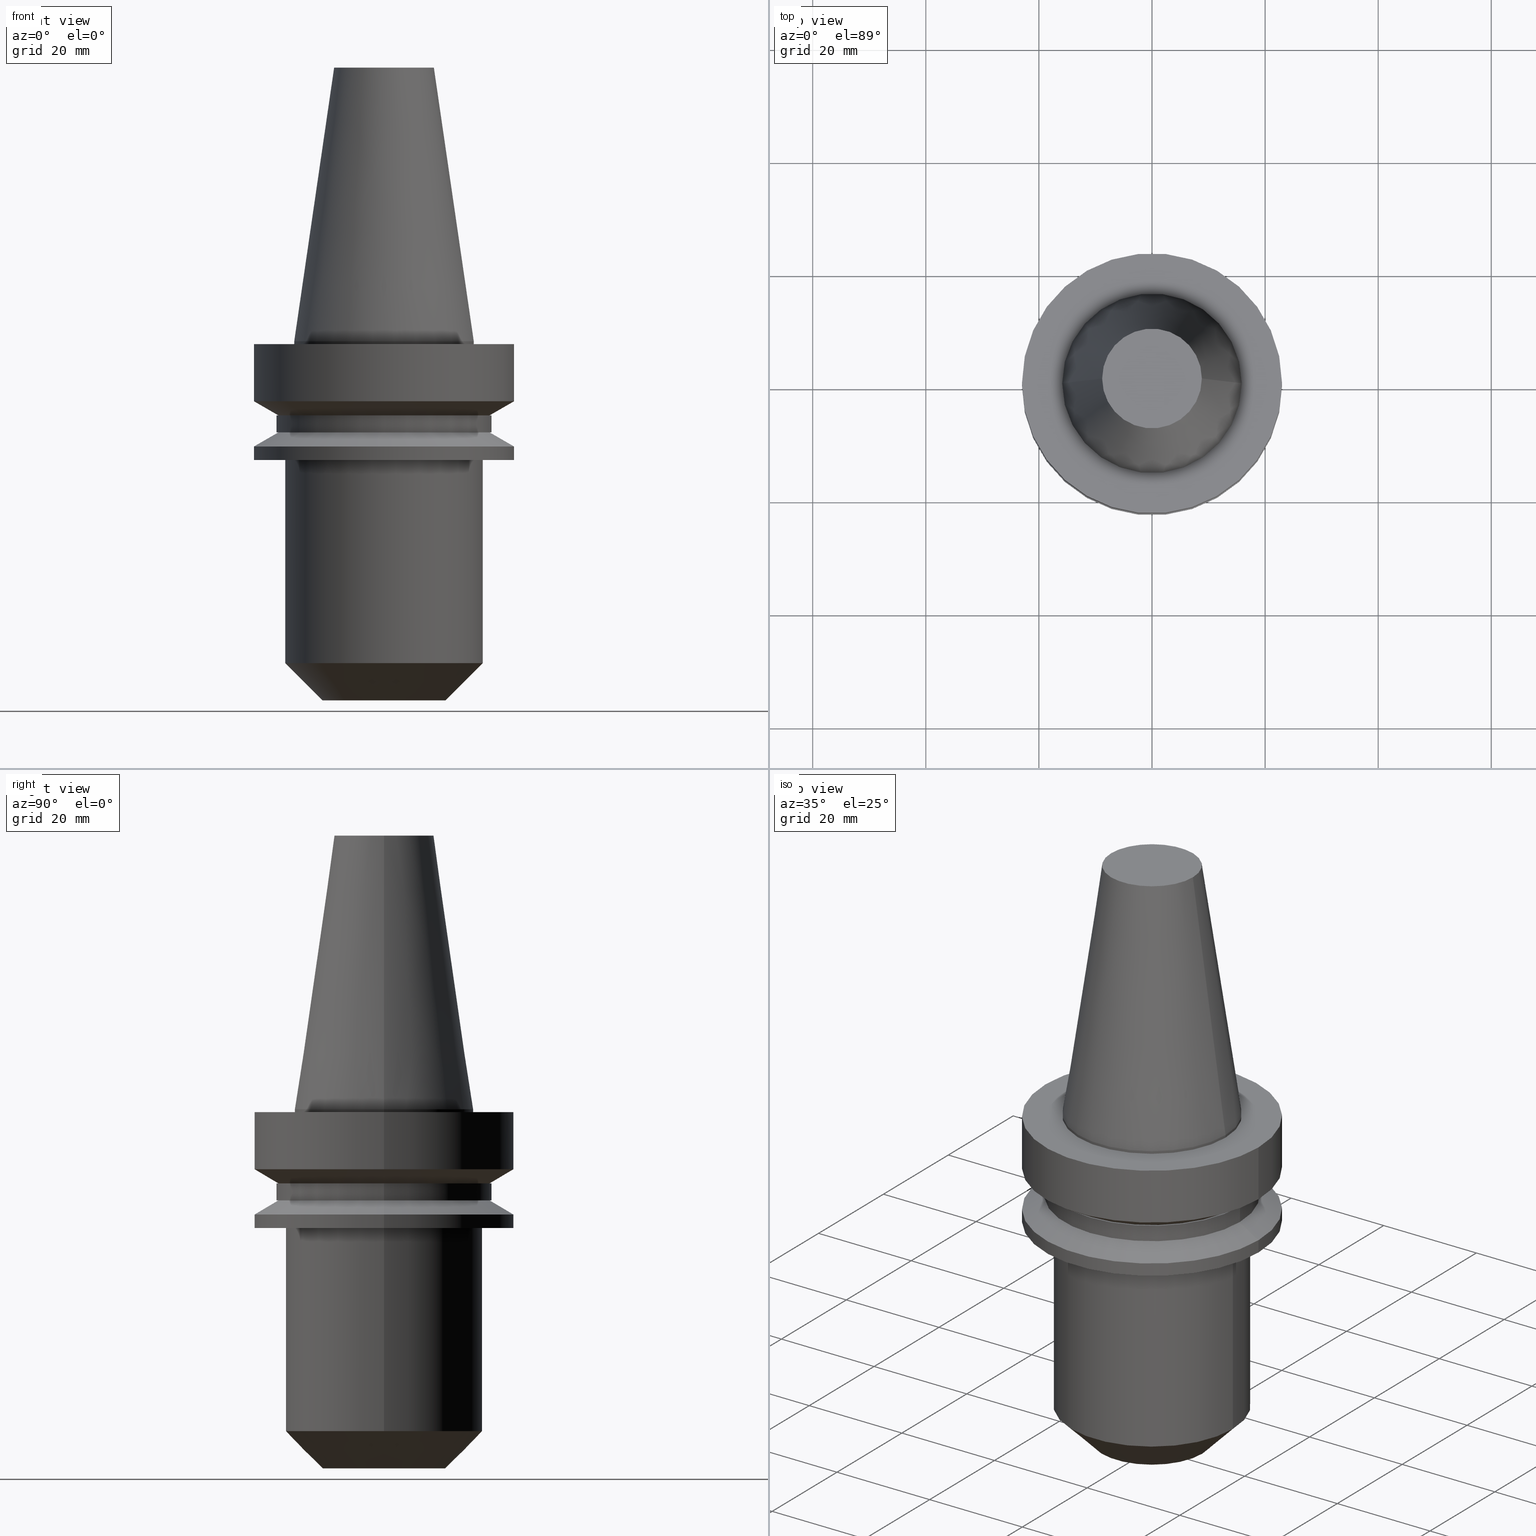
[diagram: canonical four-view strip — front | top / right | iso, engineering-drawing reading convention]
A machine part, canonical four-view strip (front | top / right | iso — engineering-drawing reading convention). The complete STEP part file that produces these views, byte-faithful:
ISO-10303-21;
HEADER;
FILE_DESCRIPTION (( 'STEP AP203' ),
    '1' );
FILE_NAME ('BBT30-EM_500-2_5.STEP',
    '2022-02-22T21:21:05',
    ( '' ),
    ( '' ),
    'SwSTEP 2.0',
    'SolidWorks 2021',
    '' );
FILE_SCHEMA (( 'CONFIG_CONTROL_DESIGN' ));
ENDSEC;

DATA;
#1 = ORIENTED_EDGE ( 'NONE', *, *, #200, .F. ) ;
#2 = EDGE_CURVE ( 'NONE', #712, #735, #480, .T. ) ;
#3 = EDGE_CURVE ( 'NONE', #318, #515, #60, .T. ) ;
#4 = CARTESIAN_POINT ( 'NONE',  ( 0.000000000000000000, 0.000000000000000000, 0.000000000000000000 ) ) ;
#5 = EDGE_LOOP ( 'NONE', ( #447, #497 ) ) ;
#6 = EDGE_CURVE ( 'NONE', #191, #664, #453, .T. ) ;
#7 = DIRECTION ( 'NONE',  ( -1.000000000000000000, 0.000000000000000000, -0.000000000000000000 ) ) ;
#8 = VECTOR ( 'NONE', #30, 1000.000000000000000 ) ;
#9 = ORIENTED_EDGE ( 'NONE', *, *, #2, .T. ) ;
#10 = AXIS2_PLACEMENT_3D ( 'NONE', #514, #753, #462 ) ;
#11 = AXIS2_PLACEMENT_3D ( 'NONE', #193, #259, #201 ) ;
#12 = EDGE_CURVE ( 'NONE', #664, #191, #653, .T. ) ;
#13 = SECURITY_CLASSIFICATION ( '', '', #350 ) ;
#14 = DIRECTION ( 'NONE',  ( -0.000000000000000000, -0.000000000000000000, 1.000000000000000000 ) ) ;
#15 = DIRECTION ( 'NONE',  ( 0.000000000000000000, 0.000000000000000000, -1.000000000000000000 ) ) ;
#16 = CARTESIAN_POINT ( 'NONE',  ( 22.99999999999999289, 0.000000000000000000, -21.00000000000000355 ) ) ;
#17 = DIRECTION ( 'NONE',  ( 1.000000000000000000, 0.000000000000000000, 0.000000000000000000 ) ) ;
#18 = ORIENTED_EDGE ( 'NONE', *, *, #435, .T. ) ;
#19 = DIRECTION ( 'NONE',  ( 1.000000000000000000, 0.000000000000000000, 0.000000000000000000 ) ) ;
#20 = CARTESIAN_POINT ( 'NONE',  ( -17.46499999999999986, 2.138845634710852534E-15, -20.99999999999999645 ) ) ;
#21 = EDGE_CURVE ( 'NONE', #545, #115, #565, .T. ) ;
#22 = ORIENTED_EDGE ( 'NONE', *, *, #63, .T. ) ;
#23 = AXIS2_PLACEMENT_3D ( 'NONE', #90, #210, #146 ) ;
#24 = VECTOR ( 'NONE', #745, 1000.000000000000114 ) ;
#25 = CIRCLE ( 'NONE', #127, 18.66962701892216359 ) ;
#26 = DIRECTION ( 'NONE',  ( -0.000000000000000000, -0.000000000000000000, 1.000000000000000000 ) ) ;
#27 = FACE_OUTER_BOUND ( 'NONE', #183, .T. ) ;
#28 = EDGE_LOOP ( 'NONE', ( #285, #512, #678, #140 ) ) ;
#29 = DIRECTION ( 'NONE',  ( 1.000000000000000000, 0.000000000000000000, 0.000000000000000000 ) ) ;
#30 = DIRECTION ( 'NONE',  ( 0.8660254037844348218, 0.000000000000000000, 0.5000000000000066613 ) ) ;
#31 = VERTEX_POINT ( 'NONE', #607 ) ;
#32 = EDGE_CURVE ( 'NONE', #463, #198, #692, .T. ) ;
#33 = DIRECTION ( 'NONE',  ( 1.000000000000000000, 0.000000000000000000, 0.000000000000000000 ) ) ;
#34 = DIRECTION ( 'NONE',  ( 1.000000000000000000, 0.000000000000000000, 0.000000000000000000 ) ) ;
#35 = ORIENTED_EDGE ( 'NONE', *, *, #422, .F. ) ;
#36 = FACE_OUTER_BOUND ( 'NONE', #623, .T. ) ;
#37 = ADVANCED_FACE ( 'NONE', ( #614 ), #258, .F. ) ;
#38 = CARTESIAN_POINT ( 'NONE',  ( -18.66962701892216359, 2.551528767519355189E-15, -13.10028401263362063 ) ) ;
#39 = CONICAL_SURFACE ( 'NONE', #88, 23.00000000000000000, 1.047197551196589416 ) ;
#40 = APPROVAL_PERSON_ORGANIZATION ( #124, #599, #184 ) ;
#41 = ORIENTED_EDGE ( 'NONE', *, *, #543, .F. ) ;
#42 = CARTESIAN_POINT ( 'NONE',  ( 19.00000000000000000, 0.000000000000000000, -13.10028401263362063 ) ) ;
#43 = LINE ( 'NONE', #577, #24 ) ;
#44 = ORIENTED_EDGE ( 'NONE', *, *, #435, .F. ) ;
#45 = DIRECTION ( 'NONE',  ( 1.000000000000000000, 0.000000000000000000, 0.000000000000000000 ) ) ;
#46 = CARTESIAN_POINT ( 'NONE',  ( 0.000000000000000000, 0.000000000000000000, 48.39999999999998437 ) ) ;
#47 = ORIENTED_EDGE ( 'NONE', *, *, #335, .F. ) ;
#48 = ADVANCED_FACE ( 'NONE', ( #27 ), #439, .T. ) ;
#49 = AXIS2_PLACEMENT_3D ( 'NONE', #465, #54, #362 ) ;
#50 = DIRECTION ( 'NONE',  ( -0.000000000000000000, -0.000000000000000000, 1.000000000000000000 ) ) ;
#51 = CONICAL_SURFACE ( 'NONE', #522, 23.00000000000000000, 1.047197551196589416 ) ;
#52 = ORIENTED_EDGE ( 'NONE', *, *, #120, .T. ) ;
#53 = PERSON_AND_ORGANIZATION ( #352, #291 ) ;
#54 = DIRECTION ( 'NONE',  ( 0.000000000000000000, -0.000000000000000000, 1.000000000000000000 ) ) ;
#55 = EDGE_LOOP ( 'NONE', ( #168, #144 ) ) ;
#56 = APPROVAL_DATE_TIME ( #644, #599 ) ;
#57 = CARTESIAN_POINT ( 'NONE',  ( 0.000000000000000000, 18.66962701892216359, -13.10028401263362063 ) ) ;
#58 = ORIENTED_EDGE ( 'NONE', *, *, #345, .F. ) ;
#59 = COORDINATED_UNIVERSAL_TIME_OFFSET ( 6, 0, .BEHIND. ) ;
#60 = CIRCLE ( 'NONE', #357, 8.816600212367498912 ) ;
#61 = AXIS2_PLACEMENT_3D ( 'NONE', #134, #202, #436 ) ;
#62 = CARTESIAN_POINT ( 'NONE',  ( 18.66962701892216359, 2.551528767519354794E-15, -16.09999999999999076 ) ) ;
#63 = EDGE_CURVE ( 'NONE', #31, #707, #507, .T. ) ;
#64 = AXIS2_PLACEMENT_3D ( 'NONE', #749, #757, #231 ) ;
#65 = ORIENTED_EDGE ( 'NONE', *, *, #483, .T. ) ;
#66 = CIRCLE ( 'NONE', #149, 23.00000000000000711 ) ;
#67 = DATE_TIME_ROLE ( 'classification_date' ) ;
#68 = DIRECTION ( 'NONE',  ( -0.000000000000000000, -0.000000000000000000, 1.000000000000000000 ) ) ;
#69 = ORIENTED_EDGE ( 'NONE', *, *, #21, .F. ) ;
#70 = ADVANCED_FACE ( 'NONE', ( #85 ), #728, .T. ) ;
#71 = CARTESIAN_POINT ( 'NONE',  ( 15.87500000000000000, 1.944126793646423238E-15, 0.000000000000000000 ) ) ;
#72 = CARTESIAN_POINT ( 'NONE',  ( 0.000000000000000000, 0.000000000000000000, -13.10028401263362063 ) ) ;
#73 = EDGE_CURVE ( 'NONE', #288, #108, #381, .T. ) ;
#74 = DIRECTION ( 'NONE',  ( 1.000000000000000000, 0.000000000000000000, 0.000000000000000000 ) ) ;
#75 = LINE ( 'NONE', #196, #312 ) ;
#76 = CIRCLE ( 'NONE', #213, 17.46499999999999986 ) ;
#77 = DIRECTION ( 'NONE',  ( -0.000000000000000000, -0.000000000000000000, 1.000000000000000000 ) ) ;
#78 = DIRECTION ( 'NONE',  ( -0.000000000000000000, -0.000000000000000000, 1.000000000000000000 ) ) ;
#79 = ORIENTED_EDGE ( 'NONE', *, *, #200, .T. ) ;
#80 = DIRECTION ( 'NONE',  ( -0.000000000000000000, -0.000000000000000000, 1.000000000000000000 ) ) ;
#81 = DIRECTION ( 'NONE',  ( 1.000000000000000000, 0.000000000000000000, 0.000000000000000000 ) ) ;
#82 = VERTEX_POINT ( 'NONE', #20 ) ;
#83 = LINE ( 'NONE', #558, #137 ) ;
#84 = ADVANCED_BREP_SHAPE_REPRESENTATION ( 'BBT30-EM_500-2_5', ( #217, #406 ), #189 ) ;
#85 = FACE_OUTER_BOUND ( 'NONE', #28, .T. ) ;
#86 = AXIS2_PLACEMENT_3D ( 'NONE', #580, #292, #342 ) ;
#87 = AXIS2_PLACEMENT_3D ( 'NONE', #308, #249, #717 ) ;
#88 = AXIS2_PLACEMENT_3D ( 'NONE', #727, #379, #603 ) ;
#89 = CARTESIAN_POINT ( 'NONE',  ( 19.00000000000000000, 0.000000000000000000, 48.39999999999998437 ) ) ;
#90 = CARTESIAN_POINT ( 'NONE',  ( 0.000000000000000000, 0.000000000000000000, 48.39999999999998437 ) ) ;
#91 = ORIENTED_EDGE ( 'NONE', *, *, #120, .F. ) ;
#92 = EDGE_CURVE ( 'NONE', #707, #31, #148, .T. ) ;
#93 = CARTESIAN_POINT ( 'NONE',  ( 0.000000000000000000, 10.86500000000008193, -63.50000000000000000 ) ) ;
#94 = DIRECTION ( 'NONE',  ( 0.1443082234293875943, 1.767266039134405996E-17, -0.9895327870518761948 ) ) ;
#95 = ADVANCED_FACE ( 'NONE', ( #323 ), #212, .T. ) ;
#96 =( LENGTH_UNIT ( ) NAMED_UNIT ( * ) SI_UNIT ( .MILLI., .METRE. ) );
#97 = DIRECTION ( 'NONE',  ( 1.000000000000000000, 0.000000000000000000, 0.000000000000000000 ) ) ;
#98 = ORIENTED_EDGE ( 'NONE', *, *, #12, .T. ) ;
#99 = CIRCLE ( 'NONE', #534, 23.00000000000000000 ) ;
#100 = AXIS2_PLACEMENT_3D ( 'NONE', #569, #339, #682 ) ;
#101 = CYLINDRICAL_SURFACE ( 'NONE', #458, 17.46499999999999986 ) ;
#102 = AXIS2_PLACEMENT_3D ( 'NONE', #517, #216, #748 ) ;
#103 = DIRECTION ( 'NONE',  ( -0.000000000000000000, -0.000000000000000000, 1.000000000000000000 ) ) ;
#104 = EDGE_LOOP ( 'NONE', ( #175, #594 ) ) ;
#105 = FACE_BOUND ( 'NONE', #585, .T. ) ;
#106 = DIRECTION ( 'NONE',  ( -0.000000000000000000, -0.000000000000000000, 1.000000000000000000 ) ) ;
#107 = CC_DESIGN_PERSON_AND_ORGANIZATION_ASSIGNMENT ( #592, #172, ( #13 ) ) ;
#108 = VERTEX_POINT ( 'NONE', #734 ) ;
#109 = DIRECTION ( 'NONE',  ( 0.000000000000000000, -0.000000000000000000, 1.000000000000000000 ) ) ;
#110 = LINE ( 'NONE', #336, #160 ) ;
#111 = EDGE_LOOP ( 'NONE', ( #58, #147 ) ) ;
#112 = PERSON_AND_ORGANIZATION ( #352, #291 ) ;
#113 = CARTESIAN_POINT ( 'NONE',  ( 0.000000000000000000, 0.000000000000000000, 48.39999999999998437 ) ) ;
#114 = LOCAL_TIME ( 15, 21, 5.000000000000000000, #762 ) ;
#115 = VERTEX_POINT ( 'NONE', #255 ) ;
#116 = EDGE_CURVE ( 'NONE', #280, #566, #770, .T. ) ;
#117 = PERSON_AND_ORGANIZATION_ROLE ( 'creator' ) ;
#118 = CARTESIAN_POINT ( 'NONE',  ( 6.349999999999996980, 0.000000000000000000, 0.000000000000000000 ) ) ;
#119 = ORIENTED_EDGE ( 'NONE', *, *, #161, .F. ) ;
#120 = EDGE_CURVE ( 'NONE', #539, #509, #99, .T. ) ;
#121 = ADVANCED_FACE ( 'NONE', ( #432 ), #500, .T. ) ;
#122 = FACE_OUTER_BOUND ( 'NONE', #337, .T. ) ;
#123 = ORIENTED_EDGE ( 'NONE', *, *, #73, .F. ) ;
#124 = PERSON_AND_ORGANIZATION ( #352, #291 ) ;
#125 = CARTESIAN_POINT ( 'NONE',  ( 17.46499999999999986, 0.000000000000000000, -20.99999999999999645 ) ) ;
#126 = ORIENTED_EDGE ( 'NONE', *, *, #209, .F. ) ;
#127 = AXIS2_PLACEMENT_3D ( 'NONE', #438, #338, #681 ) ;
#128 = PLANE ( 'NONE',  #187 ) ;
#129 = EDGE_CURVE ( 'NONE', #108, #165, #75, .T. ) ;
#130 = CARTESIAN_POINT ( 'NONE',  ( 0.000000000000000000, 0.000000000000000000, 48.39999999999999858 ) ) ;
#131 = DIRECTION ( 'NONE',  ( 1.000000000000000000, 0.000000000000000000, 0.000000000000000000 ) ) ;
#132 = DIRECTION ( 'NONE',  ( 1.000000000000000000, 0.000000000000000000, 0.000000000000000000 ) ) ;
#133 = CYLINDRICAL_SURFACE ( 'NONE', #163, 23.00000000000000355 ) ;
#134 = CARTESIAN_POINT ( 'NONE',  ( 0.000000000000000000, 0.000000000000000000, -63.50000000000000000 ) ) ;
#135 = ORIENTED_EDGE ( 'NONE', *, *, #698, .T. ) ;
#136 = AXIS2_PLACEMENT_3D ( 'NONE', #720, #195, #74 ) ;
#137 = VECTOR ( 'NONE', #26, 1000.000000000000000 ) ;
#138 = CARTESIAN_POINT ( 'NONE',  ( 18.66962701892216359, 0.000000000000000000, -13.10028401263362063 ) ) ;
#139 = DIRECTION ( 'NONE',  ( -0.000000000000000000, -0.000000000000000000, 1.000000000000000000 ) ) ;
#140 = ORIENTED_EDGE ( 'NONE', *, *, #412, .F. ) ;
#141 = CC_DESIGN_DATE_AND_TIME_ASSIGNMENT ( #295, #701, ( #446 ) ) ;
#142 = DIRECTION ( 'NONE',  ( 1.000000000000000000, 0.000000000000000000, 0.000000000000000000 ) ) ;
#143 = DIRECTION ( 'NONE',  ( -1.000000000000000000, 0.000000000000000000, -0.000000000000000000 ) ) ;
#144 = ORIENTED_EDGE ( 'NONE', *, *, #32, .T. ) ;
#145 = CARTESIAN_POINT ( 'NONE',  ( -23.00000000000000000, 2.816687638038912746E-15, -18.60014200631680836 ) ) ;
#146 = DIRECTION ( 'NONE',  ( 1.000000000000000000, 0.000000000000000000, 0.000000000000000000 ) ) ;
#147 = ORIENTED_EDGE ( 'NONE', *, *, #192, .F. ) ;
#148 = CIRCLE ( 'NONE', #331, 15.87500000000000000 ) ;
#149 = AXIS2_PLACEMENT_3D ( 'NONE', #150, #502, #45 ) ;
#150 = CARTESIAN_POINT ( 'NONE',  ( 0.000000000000000000, 0.000000000000000000, -10.60014200631680126 ) ) ;
#151 = FACE_OUTER_BOUND ( 'NONE', #270, .T. ) ;
#152 = EDGE_CURVE ( 'NONE', #729, #649, #756, .T. ) ;
#153 = EDGE_LOOP ( 'NONE', ( #9, #135, #238, #232 ) ) ;
#154 = CARTESIAN_POINT ( 'NONE',  ( -10.86500000000008193, 1.734712190992230765E-15, -63.50000000000000000 ) ) ;
#155 = CARTESIAN_POINT ( 'NONE',  ( -8.816600212367498912, 0.000000000000000000, 48.39999999999999858 ) ) ;
#156 = VERTEX_POINT ( 'NONE', #663 ) ;
#157 = LINE ( 'NONE', #444, #496 ) ;
#158 = CYLINDRICAL_SURFACE ( 'NONE', #173, 19.00000000000000000 ) ;
#159 = ORIENTED_EDGE ( 'NONE', *, *, #767, .F. ) ;
#160 = VECTOR ( 'NONE', #387, 1000.000000000000000 ) ;
#161 = EDGE_CURVE ( 'NONE', #171, #408, #392, .T. ) ;
#162 = CARTESIAN_POINT ( 'NONE',  ( 23.00000000000000000, 0.000000000000000000, -0.5000000000000004441 ) ) ;
#163 = AXIS2_PLACEMENT_3D ( 'NONE', #485, #368, #19 ) ;
#164 = LINE ( 'NONE', #391, #197 ) ;
#165 = VERTEX_POINT ( 'NONE', #373 ) ;
#166 = CARTESIAN_POINT ( 'NONE',  ( -6.349999999999996980, 7.776507174585690191E-16, 0.000000000000000000 ) ) ;
#167 = DIRECTION ( 'NONE',  ( -0.000000000000000000, -0.000000000000000000, 1.000000000000000000 ) ) ;
#168 = ORIENTED_EDGE ( 'NONE', *, *, #257, .T. ) ;
#169 = DIRECTION ( 'NONE',  ( 0.7071067811865435759, 0.000000000000000000, 0.7071067811865515695 ) ) ;
#170 = EDGE_CURVE ( 'NONE', #515, #493, #624, .T. ) ;
#171 = VERTEX_POINT ( 'NONE', #224 ) ;
#172 = PERSON_AND_ORGANIZATION_ROLE ( 'classification_officer' ) ;
#173 = AXIS2_PLACEMENT_3D ( 'NONE', #46, #763, #583 ) ;
#174 = CARTESIAN_POINT ( 'NONE',  ( 15.87500000000000000, 0.000000000000000000, 48.39999999999998437 ) ) ;
#175 = ORIENTED_EDGE ( 'NONE', *, *, #92, .F. ) ;
#176 = EDGE_CURVE ( 'NONE', #493, #321, #415, .T. ) ;
#177 = ADVANCED_FACE ( 'NONE', ( #628 ), #454, .T. ) ;
#178 = COORDINATED_UNIVERSAL_TIME_OFFSET ( 6, 0, .BEHIND. ) ;
#179 = DIRECTION ( 'NONE',  ( 0.000000000000000000, 0.000000000000000000, -1.000000000000000000 ) ) ;
#180 = ORIENTED_EDGE ( 'NONE', *, *, #284, .T. ) ;
#181 = DATE_AND_TIME ( #710, #669 ) ;
#182 = CYLINDRICAL_SURFACE ( 'NONE', #758, 6.349999999999996980 ) ;
#183 = EDGE_LOOP ( 'NONE', ( #574, #225, #519, #69 ) ) ;
#184 = APPROVAL_ROLE ( '' ) ;
#185 = CIRCLE ( 'NONE', #584, 6.349999999999996980 ) ;
#186 = DIRECTION ( 'NONE',  ( 0.000000000000000000, -0.000000000000000000, 1.000000000000000000 ) ) ;
#187 = AXIS2_PLACEMENT_3D ( 'NONE', #57, #179, #7 ) ;
#188 = DIRECTION ( 'NONE',  ( 1.000000000000000000, 0.000000000000000000, 0.000000000000000000 ) ) ;
#189 =( GEOMETRIC_REPRESENTATION_CONTEXT ( 3 ) GLOBAL_UNCERTAINTY_ASSIGNED_CONTEXT ( ( #590 ) ) GLOBAL_UNIT_ASSIGNED_CONTEXT ( ( #96, #278, #656 ) ) REPRESENTATION_CONTEXT ( 'NONE', 'WORKASPACE' ) );
#190 = CARTESIAN_POINT ( 'NONE',  ( 23.00000000000000000, 2.816687638038912352E-15, -18.60014200631680836 ) ) ;
#191 = VERTEX_POINT ( 'NONE', #279 ) ;
#192 = EDGE_CURVE ( 'NONE', #696, #437, #185, .T. ) ;
#193 = CARTESIAN_POINT ( 'NONE',  ( 0.000000000000000000, 0.000000000000000000, -16.10000000000000142 ) ) ;
#194 = DIRECTION ( 'NONE',  ( -0.000000000000000000, -0.000000000000000000, 1.000000000000000000 ) ) ;
#195 = DIRECTION ( 'NONE',  ( -0.000000000000000000, -0.000000000000000000, 1.000000000000000000 ) ) ;
#196 = CARTESIAN_POINT ( 'NONE',  ( -23.00000000000000355, 2.816687638038912746E-15, 48.39999999999998437 ) ) ;
#197 = VECTOR ( 'NONE', #103, 1000.000000000000000 ) ;
#198 = VERTEX_POINT ( 'NONE', #396 ) ;
#199 = CC_DESIGN_PERSON_AND_ORGANIZATION_ASSIGNMENT ( #112, #526, ( #547 ) ) ;
#200 = EDGE_CURVE ( 'NONE', #280, #539, #110, .T. ) ;
#201 = DIRECTION ( 'NONE',  ( 1.000000000000000000, 0.000000000000000000, 0.000000000000000000 ) ) ;
#202 = DIRECTION ( 'NONE',  ( -0.000000000000000000, -0.000000000000000000, 1.000000000000000000 ) ) ;
#203 = ORIENTED_EDGE ( 'NONE', *, *, #543, .T. ) ;
#204 = ADVANCED_FACE ( 'NONE', ( #272 ), #158, .T. ) ;
#205 = CARTESIAN_POINT ( 'NONE',  ( 0.000000000000000000, 0.000000000000000000, 0.000000000000000000 ) ) ;
#206 = CARTESIAN_POINT ( 'NONE',  ( -18.66962701892216359, 2.286369896999797237E-15, -13.10028401263362063 ) ) ;
#207 = ORIENTED_EDGE ( 'NONE', *, *, #563, .F. ) ;
#208 = DIRECTION ( 'NONE',  ( 0.000000000000000000, -0.000000000000000000, 1.000000000000000000 ) ) ;
#209 = EDGE_CURVE ( 'NONE', #318, #321, #43, .T. ) ;
#210 = DIRECTION ( 'NONE',  ( -0.000000000000000000, -0.000000000000000000, 1.000000000000000000 ) ) ;
#211 = EDGE_LOOP ( 'NONE', ( #307, #353 ) ) ;
#212 = CONICAL_SURFACE ( 'NONE', #730, 15.87500000000000000, 0.1448138426689024039 ) ;
#213 = AXIS2_PLACEMENT_3D ( 'NONE', #287, #445, #330 ) ;
#214 = CIRCLE ( 'NONE', #11, 19.00000000000000000 ) ;
#215 = CIRCLE ( 'NONE', #102, 18.66962701892216359 ) ;
#216 = DIRECTION ( 'NONE',  ( -0.000000000000000000, -0.000000000000000000, 1.000000000000000000 ) ) ;
#217 = MANIFOLD_SOLID_BREP ( 'EM', #301 ) ;
#218 = CARTESIAN_POINT ( 'NONE',  ( -22.99999999999999289, 2.816687638038911957E-15, -21.00000000000000355 ) ) ;
#219 = ORIENTED_EDGE ( 'NONE', *, *, #708, .F. ) ;
#220 = DIRECTION ( 'NONE',  ( 1.000000000000000000, 0.000000000000000000, 0.000000000000000000 ) ) ;
#221 = DIRECTION ( 'NONE',  ( -0.000000000000000000, -0.000000000000000000, 1.000000000000000000 ) ) ;
#222 = ORIENTED_EDGE ( 'NONE', *, *, #32, .F. ) ;
#223 = CARTESIAN_POINT ( 'NONE',  ( 19.00000000000000000, 0.000000000000000000, -16.10000000000000142 ) ) ;
#224 = CARTESIAN_POINT ( 'NONE',  ( -6.349999999999999645, 7.776507174585693149E-16, -63.50000000000000000 ) ) ;
#225 = ORIENTED_EDGE ( 'NONE', *, *, #73, .T. ) ;
#226 = AXIS2_PLACEMENT_3D ( 'NONE', #511, #106, #97 ) ;
#227 = EDGE_CURVE ( 'NONE', #566, #280, #289, .T. ) ;
#228 = VECTOR ( 'NONE', #552, 1000.000000000000000 ) ;
#229 = CARTESIAN_POINT ( 'NONE',  ( -6.349999999999996980, 7.776507174585690191E-16, -20.99999999999999645 ) ) ;
#230 = CIRCLE ( 'NONE', #471, 17.46499999999999986 ) ;
#231 = DIRECTION ( 'NONE',  ( 1.000000000000000000, 0.000000000000000000, 0.000000000000000000 ) ) ;
#232 = ORIENTED_EDGE ( 'NONE', *, *, #376, .F. ) ;
#233 = PERSON_AND_ORGANIZATION_ROLE ( 'design_owner' ) ;
#234 = DIRECTION ( 'NONE',  ( 1.000000000000000000, 0.000000000000000000, 0.000000000000000000 ) ) ;
#235 = ORIENTED_EDGE ( 'NONE', *, *, #345, .T. ) ;
#236 = PLANE ( 'NONE',  #49 ) ;
#237 = CC_DESIGN_PERSON_AND_ORGANIZATION_ASSIGNMENT ( #638, #117, ( #446 ) ) ;
#238 = ORIENTED_EDGE ( 'NONE', *, *, #527, .F. ) ;
#239 = AXIS2_PLACEMENT_3D ( 'NONE', #617, #317, #81 ) ;
#240 = DATE_AND_TIME ( #530, #114 ) ;
#241 = LINE ( 'NONE', #174, #520 ) ;
#242 = CIRCLE ( 'NONE', #709, 8.816600212367498912 ) ;
#243 = ORIENTED_EDGE ( 'NONE', *, *, #366, .F. ) ;
#244 = COORDINATED_UNIVERSAL_TIME_OFFSET ( 6, 0, .BEHIND. ) ;
#245 = CYLINDRICAL_SURFACE ( 'NONE', #521, 17.46499999999999986 ) ;
#246 = EDGE_LOOP ( 'NONE', ( #715, #700, #203, #397 ) ) ;
#247 = APPROVAL ( #302, 'UNSPECIFIED' ) ;
#248 = DIRECTION ( 'NONE',  ( 0.000000000000000000, 0.000000000000000000, 1.000000000000000000 ) ) ;
#249 = DIRECTION ( 'NONE',  ( -0.000000000000000000, -0.000000000000000000, 1.000000000000000000 ) ) ;
#250 = ORIENTED_EDGE ( 'NONE', *, *, #632, .T. ) ;
#251 = DIRECTION ( 'NONE',  ( -0.000000000000000000, -0.000000000000000000, 1.000000000000000000 ) ) ;
#252 = VECTOR ( 'NONE', #169, 999.9999999999998863 ) ;
#253 = ORIENTED_EDGE ( 'NONE', *, *, #176, .T. ) ;
#254 = FACE_OUTER_BOUND ( 'NONE', #263, .T. ) ;
#255 = CARTESIAN_POINT ( 'NONE',  ( 23.00000000000000711, 0.000000000000000000, -10.60014200631680126 ) ) ;
#256 = FACE_OUTER_BOUND ( 'NONE', #772, .T. ) ;
#257 = EDGE_CURVE ( 'NONE', #198, #463, #416, .T. ) ;
#258 = PLANE ( 'NONE',  #260 ) ;
#259 = DIRECTION ( 'NONE',  ( -0.000000000000000000, -0.000000000000000000, 1.000000000000000000 ) ) ;
#260 = AXIS2_PLACEMENT_3D ( 'NONE', #674, #492, #143 ) ;
#261 = CARTESIAN_POINT ( 'NONE',  ( 0.000000000000000000, 0.000000000000000000, 48.39999999999998437 ) ) ;
#262 = CIRCLE ( 'NONE', #10, 6.349999999999996980 ) ;
#263 = EDGE_LOOP ( 'NONE', ( #555, #250, #403, #751 ) ) ;
#264 = CIRCLE ( 'NONE', #136, 15.87500000000000000 ) ;
#265 = CARTESIAN_POINT ( 'NONE',  ( 8.816600212367498912, 1.511924458295098338E-15, 48.39999999999999858 ) ) ;
#266 = CARTESIAN_POINT ( 'NONE',  ( 0.000000000000000000, 0.000000000000000000, -18.60014200631680836 ) ) ;
#267 = EDGE_CURVE ( 'NONE', #509, #539, #333, .T. ) ;
#268 = FACE_OUTER_BOUND ( 'NONE', #625, .T. ) ;
#269 = CARTESIAN_POINT ( 'NONE',  ( 0.000000000000000000, 0.000000000000000000, -0.5000000000000004441 ) ) ;
#270 = EDGE_LOOP ( 'NONE', ( #300, #743, #726, #243 ) ) ;
#271 = DIRECTION ( 'NONE',  ( -0.000000000000000000, -0.000000000000000000, 1.000000000000000000 ) ) ;
#272 = FACE_OUTER_BOUND ( 'NONE', #246, .T. ) ;
#273 = PRODUCT ( 'BBT30-EM_500-2_5', 'BBT30-EM_500-2_5', '', ( #582 ) ) ;
#274 = ORIENTED_EDGE ( 'NONE', *, *, #3, .F. ) ;
#275 = AXIS2_PLACEMENT_3D ( 'NONE', #269, #554, #551 ) ;
#276 = VECTOR ( 'NONE', #50, 1000.000000000000000 ) ;
#277 = VECTOR ( 'NONE', #364, 1000.000000000000000 ) ;
#278 =( NAMED_UNIT ( * ) PLANE_ANGLE_UNIT ( ) SI_UNIT ( $, .RADIAN. ) );
#279 = CARTESIAN_POINT ( 'NONE',  ( -19.00000000000000000, 2.326828918379970970E-15, -13.10028401263362063 ) ) ;
#280 = VERTEX_POINT ( 'NONE', #218 ) ;
#281 = PRODUCT_DEFINITION_SHAPE ( 'NONE', 'NONE',  #446 ) ;
#282 = LINE ( 'NONE', #166, #655 ) ;
#283 = CARTESIAN_POINT ( 'NONE',  ( 0.000000000000000000, 0.000000000000000000, -21.00000000000000355 ) ) ;
#284 = EDGE_CURVE ( 'NONE', #660, #82, #164, .T. ) ;
#285 = ORIENTED_EDGE ( 'NONE', *, *, #129, .F. ) ;
#286 = FACE_OUTER_BOUND ( 'NONE', #759, .T. ) ;
#287 = CARTESIAN_POINT ( 'NONE',  ( 0.000000000000000000, 0.000000000000000000, -20.99999999999999645 ) ) ;
#288 = VERTEX_POINT ( 'NONE', #38 ) ;
#289 = CIRCLE ( 'NONE', #469, 22.99999999999999289 ) ;
#290 = PERSON_AND_ORGANIZATION ( #352, #291 ) ;
#291 = ORGANIZATION ( 'UNSPECIFIED', 'UNSPECIFIED', '' ) ;
#292 = DIRECTION ( 'NONE',  ( -0.000000000000000000, -0.000000000000000000, 1.000000000000000000 ) ) ;
#293 = ORIENTED_EDGE ( 'NONE', *, *, #129, .T. ) ;
#294 = ADVANCED_FACE ( 'NONE', ( #151 ), #633, .T. ) ;
#295 = DATE_AND_TIME ( #354, #382 ) ;
#296 = FACE_OUTER_BOUND ( 'NONE', #111, .T. ) ;
#297 = ORIENTED_EDGE ( 'NONE', *, *, #315, .F. ) ;
#298 = SHAPE_DEFINITION_REPRESENTATION ( #281, #84 ) ;
#299 = CARTESIAN_POINT ( 'NONE',  ( 0.000000000000000000, 0.000000000000000000, -20.99999999999999645 ) ) ;
#300 = ORIENTED_EDGE ( 'NONE', *, *, #92, .T. ) ;
#301 = CLOSED_SHELL ( 'NONE', ( #448, #430, #418, #294, #532, #48, #177, #567, #121, #95, #661, #591, #37, #389, #703, #360, #204, #400, #550, #70, #618, #386, #723, #609, #725, #672, #404 ) ) ;
#302 = APPROVAL_STATUS ( 'not_yet_approved' ) ;
#303 = CIRCLE ( 'NONE', #64, 23.00000000000000711 ) ;
#304 = FACE_OUTER_BOUND ( 'NONE', #642, .T. ) ;
#305 = AXIS2_PLACEMENT_3D ( 'NONE', #691, #576, #220 ) ;
#306 = EDGE_CURVE ( 'NONE', #82, #473, #76, .T. ) ;
#307 = ORIENTED_EDGE ( 'NONE', *, *, #152, .F. ) ;
#308 = CARTESIAN_POINT ( 'NONE',  ( 0.000000000000000000, 0.000000000000000000, -56.90000000000000568 ) ) ;
#309 = EDGE_LOOP ( 'NONE', ( #589, #581, #570, #52 ) ) ;
#310 = FACE_OUTER_BOUND ( 'NONE', #429, .T. ) ;
#311 = ORIENTED_EDGE ( 'NONE', *, *, #474, .T. ) ;
#312 = VECTOR ( 'NONE', #427, 1000.000000000000000 ) ;
#313 = FACE_OUTER_BOUND ( 'NONE', #393, .T. ) ;
#314 = DIRECTION ( 'NONE',  ( -0.000000000000000000, -0.000000000000000000, 1.000000000000000000 ) ) ;
#315 = EDGE_CURVE ( 'NONE', #156, #473, #518, .T. ) ;
#316 = CARTESIAN_POINT ( 'NONE',  ( 23.00000000000000000, 0.000000000000000000, -18.60014200631680836 ) ) ;
#317 = DIRECTION ( 'NONE',  ( -0.000000000000000000, -0.000000000000000000, 1.000000000000000000 ) ) ;
#318 = VERTEX_POINT ( 'NONE', #155 ) ;
#319 = CARTESIAN_POINT ( 'NONE',  ( 0.000000000000000000, 23.00000000000000000, -0.4999999999999995559 ) ) ;
#320 = CARTESIAN_POINT ( 'NONE',  ( 0.000000000000000000, 0.000000000000000000, -13.10028401263362063 ) ) ;
#321 = VERTEX_POINT ( 'NONE', #622 ) ;
#322 = FACE_OUTER_BOUND ( 'NONE', #388, .T. ) ;
#323 = FACE_OUTER_BOUND ( 'NONE', #658, .T. ) ;
#324 = AXIS2_PLACEMENT_3D ( 'NONE', #113, #775, #652 ) ;
#325 = CIRCLE ( 'NONE', #561, 23.00000000000000000 ) ;
#326 = CARTESIAN_POINT ( 'NONE',  ( 0.000000000000000000, 0.000000000000000000, -56.90000000000000568 ) ) ;
#327 = CARTESIAN_POINT ( 'NONE',  ( 0.000000000000000000, 0.000000000000000000, -21.00000000000000355 ) ) ;
#328 = DIRECTION ( 'NONE',  ( 1.000000000000000000, 0.000000000000000000, 0.000000000000000000 ) ) ;
#329 = DIRECTION ( 'NONE',  ( -0.000000000000000000, -0.000000000000000000, 1.000000000000000000 ) ) ;
#330 = DIRECTION ( 'NONE',  ( 1.000000000000000000, 0.000000000000000000, 0.000000000000000000 ) ) ;
#331 = AXIS2_PLACEMENT_3D ( 'NONE', #724, #742, #17 ) ;
#332 = ORIENTED_EDGE ( 'NONE', *, *, #3, .T. ) ;
#333 = CIRCLE ( 'NONE', #100, 23.00000000000000000 ) ;
#334 = PLANE ( 'NONE',  #486 ) ;
#335 = EDGE_CURVE ( 'NONE', #108, #115, #303, .T. ) ;
#336 = CARTESIAN_POINT ( 'NONE',  ( -22.99999999999999645, 2.816687638038911957E-15, 48.39999999999998437 ) ) ;
#337 = EDGE_LOOP ( 'NONE', ( #119, #451, #533, #44 ) ) ;
#338 = DIRECTION ( 'NONE',  ( -0.000000000000000000, -0.000000000000000000, 1.000000000000000000 ) ) ;
#339 = DIRECTION ( 'NONE',  ( -0.000000000000000000, -0.000000000000000000, 1.000000000000000000 ) ) ;
#340 = EDGE_LOOP ( 'NONE', ( #378, #579 ) ) ;
#341 = DIRECTION ( 'NONE',  ( 1.000000000000000000, 0.000000000000000000, 0.000000000000000000 ) ) ;
#342 = DIRECTION ( 'NONE',  ( 1.000000000000000000, 0.000000000000000000, 0.000000000000000000 ) ) ;
#343 = ORIENTED_EDGE ( 'NONE', *, *, #116, .F. ) ;
#344 = AXIS2_PLACEMENT_3D ( 'NONE', #320, #78, #670 ) ;
#345 = EDGE_CURVE ( 'NONE', #437, #696, #262, .T. ) ;
#346 = AXIS2_PLACEMENT_3D ( 'NONE', #687, #221, #234 ) ;
#347 = APPROVAL_ROLE ( '' ) ;
#348 = CARTESIAN_POINT ( 'NONE',  ( 0.000000000000000000, 19.00000000000000000, -16.09999999999999787 ) ) ;
#349 = ORIENTED_EDGE ( 'NONE', *, *, #422, .T. ) ;
#350 = SECURITY_CLASSIFICATION_LEVEL ( 'unclassified' ) ;
#351 = CARTESIAN_POINT ( 'NONE',  ( 6.349999999999996980, 0.000000000000000000, -20.99999999999999645 ) ) ;
#352 = PERSON ( 'UNSPECIFIED', 'UNSPECIFIED', 'UNSPECIFIED', ('UNSPECIFIED'), ('UNSPECIFIED'), ('UNSPECIFIED') ) ;
#353 = ORIENTED_EDGE ( 'NONE', *, *, #516, .F. ) ;
#354 = CALENDAR_DATE ( 2022, 22, 2 ) ;
#355 = CARTESIAN_POINT ( 'NONE',  ( 0.000000000000000000, 0.000000000000000000, 0.000000000000000000 ) ) ;
#356 = ORIENTED_EDGE ( 'NONE', *, *, #306, .F. ) ;
#357 = AXIS2_PLACEMENT_3D ( 'NONE', #130, #363, #602 ) ;
#358 = CALENDAR_DATE ( 2022, 22, 2 ) ;
#359 = LINE ( 'NONE', #598, #484 ) ;
#360 = ADVANCED_FACE ( 'NONE', ( #699, #399 ), #636, .F. ) ;
#361 = ORIENTED_EDGE ( 'NONE', *, *, #676, .T. ) ;
#362 = DIRECTION ( 'NONE',  ( 1.000000000000000000, 0.000000000000000000, 0.000000000000000000 ) ) ;
#363 = DIRECTION ( 'NONE',  ( -0.000000000000000000, -0.000000000000000000, 1.000000000000000000 ) ) ;
#364 = DIRECTION ( 'NONE',  ( -0.8660254037844344888, 0.000000000000000000, -0.5000000000000072164 ) ) ;
#365 = DIRECTION ( 'NONE',  ( 1.000000000000000000, 0.000000000000000000, 0.000000000000000000 ) ) ;
#366 = EDGE_CURVE ( 'NONE', #707, #493, #241, .T. ) ;
#367 = AXIS2_PLACEMENT_3D ( 'NONE', #604, #194, #377 ) ;
#368 = DIRECTION ( 'NONE',  ( -0.000000000000000000, -0.000000000000000000, 1.000000000000000000 ) ) ;
#369 = CARTESIAN_POINT ( 'NONE',  ( 18.66962701892216359, 0.000000000000000000, -13.10028401263362063 ) ) ;
#370 = AXIS2_PLACEMENT_3D ( 'NONE', #668, #372, #142 ) ;
#371 = EDGE_LOOP ( 'NONE', ( #562, #79, #501, #747 ) ) ;
#372 = DIRECTION ( 'NONE',  ( -0.000000000000000000, -0.000000000000000000, 1.000000000000000000 ) ) ;
#373 = CARTESIAN_POINT ( 'NONE',  ( -23.00000000000000000, 2.816687638038912746E-15, -0.5000000000000004441 ) ) ;
#374 = ORIENTED_EDGE ( 'NONE', *, *, #170, .T. ) ;
#375 = DIRECTION ( 'NONE',  ( 1.000000000000000000, 0.000000000000000000, 0.000000000000000000 ) ) ;
#376 = EDGE_CURVE ( 'NONE', #712, #156, #538, .T. ) ;
#377 = DIRECTION ( 'NONE',  ( 1.000000000000000000, 0.000000000000000000, 0.000000000000000000 ) ) ;
#378 = ORIENTED_EDGE ( 'NONE', *, *, #761, .F. ) ;
#379 = DIRECTION ( 'NONE',  ( 0.000000000000000000, 0.000000000000000000, -1.000000000000000000 ) ) ;
#380 = AXIS2_PLACEMENT_3D ( 'NONE', #524, #450, #384 ) ;
#381 = LINE ( 'NONE', #206, #665 ) ;
#382 = LOCAL_TIME ( 15, 21, 5.000000000000000000, #59 ) ;
#383 = DIRECTION ( 'NONE',  ( -0.000000000000000000, -0.000000000000000000, 1.000000000000000000 ) ) ;
#384 = DIRECTION ( 'NONE',  ( 1.000000000000000000, 0.000000000000000000, 0.000000000000000000 ) ) ;
#385 = ORIENTED_EDGE ( 'NONE', *, *, #527, .T. ) ;
#386 = ADVANCED_FACE ( 'NONE', ( #531 ), #593, .T. ) ;
#387 = DIRECTION ( 'NONE',  ( -0.000000000000000000, -0.000000000000000000, 1.000000000000000000 ) ) ;
#388 = EDGE_LOOP ( 'NONE', ( #608, #542 ) ) ;
#389 = ADVANCED_FACE ( 'NONE', ( #472 ), #639, .T. ) ;
#390 = CARTESIAN_POINT ( 'NONE',  ( 0.000000000000000000, 0.000000000000000000, -18.60014200631680836 ) ) ;
#391 = CARTESIAN_POINT ( 'NONE',  ( -17.46499999999999986, 2.138845634710852534E-15, 0.000000000000000000 ) ) ;
#392 = CIRCLE ( 'NONE', #61, 6.349999999999999645 ) ;
#393 = EDGE_LOOP ( 'NONE', ( #654, #274, #468, #477 ) ) ;
#394 = AXIS2_PLACEMENT_3D ( 'NONE', #461, #449, #328 ) ;
#395 = DIRECTION ( 'NONE',  ( -1.000000000000000000, 0.000000000000000000, 0.000000000000000000 ) ) ;
#396 = CARTESIAN_POINT ( 'NONE',  ( -18.66962701892216359, 0.000000000000000000, -16.09999999999999076 ) ) ;
#397 = ORIENTED_EDGE ( 'NONE', *, *, #6, .F. ) ;
#398 = FACE_OUTER_BOUND ( 'NONE', #309, .T. ) ;
#399 = FACE_BOUND ( 'NONE', #55, .T. ) ;
#400 = ADVANCED_FACE ( 'NONE', ( #588, #304 ), #128, .F. ) ;
#401 = EDGE_LOOP ( 'NONE', ( #219, #423, #18, #235 ) ) ;
#402 = DIRECTION ( 'NONE',  ( -0.000000000000000000, -0.000000000000000000, 1.000000000000000000 ) ) ;
#403 = ORIENTED_EDGE ( 'NONE', *, *, #376, .T. ) ;
#404 = ADVANCED_FACE ( 'NONE', ( #296 ), #236, .F. ) ;
#405 = CALENDAR_DATE ( 2022, 22, 2 ) ;
#406 = AXIS2_PLACEMENT_3D ( 'NONE', #475, #248, #470 ) ;
#407 = CARTESIAN_POINT ( 'NONE',  ( 10.86500000000008193, 0.000000000000000000, -63.50000000000000000 ) ) ;
#408 = VERTEX_POINT ( 'NONE', #702 ) ;
#409 = APPROVAL_DATE_TIME ( #240, #506 ) ;
#410 = DIRECTION ( 'NONE',  ( 1.000000000000000000, 0.000000000000000000, 0.000000000000000000 ) ) ;
#411 = ORIENTED_EDGE ( 'NONE', *, *, #284, .F. ) ;
#412 = EDGE_CURVE ( 'NONE', #165, #754, #482, .T. ) ;
#413 = DIRECTION ( 'NONE',  ( -0.000000000000000000, -0.000000000000000000, 1.000000000000000000 ) ) ;
#414 = ORIENTED_EDGE ( 'NONE', *, *, #632, .F. ) ;
#415 = CIRCLE ( 'NONE', #86, 15.87500000000000000 ) ;
#416 = CIRCLE ( 'NONE', #346, 18.66962701892216359 ) ;
#417 = CARTESIAN_POINT ( 'NONE',  ( 0.000000000000000000, 0.000000000000000000, 48.39999999999998437 ) ) ;
#418 = ADVANCED_FACE ( 'NONE', ( #310 ), #245, .T. ) ;
#419 = CONICAL_SURFACE ( 'NONE', #536, 18.66962701892216359, 1.047197551196590082 ) ;
#420 = EDGE_LOOP ( 'NONE', ( #740, #311, #764, #41 ) ) ;
#421 = DIRECTION ( 'NONE',  ( 1.000000000000000000, 0.000000000000000000, 0.000000000000000000 ) ) ;
#422 = EDGE_CURVE ( 'NONE', #473, #82, #680, .T. ) ;
#423 = ORIENTED_EDGE ( 'NONE', *, *, #689, .F. ) ;
#424 = CARTESIAN_POINT ( 'NONE',  ( 22.99999999999999645, 0.000000000000000000, 48.39999999999998437 ) ) ;
#425 = DIRECTION ( 'NONE',  ( 1.000000000000000000, 0.000000000000000000, 0.000000000000000000 ) ) ;
#426 = DIRECTION ( 'NONE',  ( -1.000000000000000000, 0.000000000000000000, 0.000000000000000000 ) ) ;
#427 = DIRECTION ( 'NONE',  ( -0.000000000000000000, -0.000000000000000000, 1.000000000000000000 ) ) ;
#428 = AXIS2_PLACEMENT_3D ( 'NONE', #319, #733, #431 ) ;
#429 = EDGE_LOOP ( 'NONE', ( #385, #180, #600, #297 ) ) ;
#430 = ADVANCED_FACE ( 'NONE', ( #476 ), #559, .T. ) ;
#431 = DIRECTION ( 'NONE',  ( -1.000000000000000000, 0.000000000000000000, -0.000000000000000000 ) ) ;
#432 = FACE_OUTER_BOUND ( 'NONE', #371, .T. ) ;
#433 = ORIENTED_EDGE ( 'NONE', *, *, #651, .F. ) ;
#434 = CARTESIAN_POINT ( 'NONE',  ( 0.000000000000000000, 0.000000000000000000, -63.50000000000000000 ) ) ;
#435 = EDGE_CURVE ( 'NONE', #408, #437, #601, .T. ) ;
#436 = DIRECTION ( 'NONE',  ( 1.000000000000000000, 0.000000000000000000, 0.000000000000000000 ) ) ;
#437 = VERTEX_POINT ( 'NONE', #351 ) ;
#438 = CARTESIAN_POINT ( 'NONE',  ( 0.000000000000000000, 0.000000000000000000, -13.10028401263362063 ) ) ;
#439 = CONICAL_SURFACE ( 'NONE', #239, 18.66962701892216359, 1.047197551196590082 ) ;
#440 = DIRECTION ( 'NONE',  ( 1.000000000000000000, 0.000000000000000000, 0.000000000000000000 ) ) ;
#441 = CIRCLE ( 'NONE', #87, 17.46499999999999986 ) ;
#442 = EDGE_LOOP ( 'NONE', ( #433, #22, #646, #634 ) ) ;
#443 = APPROVAL_PERSON_ORGANIZATION ( #290, #506, #523 ) ;
#444 = CARTESIAN_POINT ( 'NONE',  ( 23.00000000000000355, 0.000000000000000000, 48.39999999999998437 ) ) ;
#445 = DIRECTION ( 'NONE',  ( 0.000000000000000000, 0.000000000000000000, -1.000000000000000000 ) ) ;
#446 = PRODUCT_DEFINITION ( 'UNKNOWN', '', #547, #736 ) ;
#447 = ORIENTED_EDGE ( 'NONE', *, *, #689, .T. ) ;
#448 = ADVANCED_FACE ( 'NONE', ( #122 ), #182, .F. ) ;
#449 = DIRECTION ( 'NONE',  ( -0.000000000000000000, -0.000000000000000000, 1.000000000000000000 ) ) ;
#450 = DIRECTION ( 'NONE',  ( -0.000000000000000000, -0.000000000000000000, 1.000000000000000000 ) ) ;
#451 = ORIENTED_EDGE ( 'NONE', *, *, #708, .T. ) ;
#452 = FACE_OUTER_BOUND ( 'NONE', #401, .T. ) ;
#453 = CIRCLE ( 'NONE', #556, 19.00000000000000000 ) ;
#454 = CYLINDRICAL_SURFACE ( 'NONE', #380, 19.00000000000000000 ) ;
#455 = VECTOR ( 'NONE', #94, 1000.000000000000114 ) ;
#456 = ORIENTED_EDGE ( 'NONE', *, *, #563, .T. ) ;
#457 = AXIS2_PLACEMENT_3D ( 'NONE', #645, #528, #766 ) ;
#458 = AXIS2_PLACEMENT_3D ( 'NONE', #635, #752, #341 ) ;
#459 = PRODUCT_RELATED_PRODUCT_CATEGORY ( 'detail', '', ( #273 ) ) ;
#460 = CC_DESIGN_APPROVAL ( #247, ( #547 ) ) ;
#461 = CARTESIAN_POINT ( 'NONE',  ( 0.000000000000000000, 0.000000000000000000, -63.50000000000000000 ) ) ;
#462 = DIRECTION ( 'NONE',  ( 1.000000000000000000, 0.000000000000000000, 0.000000000000000000 ) ) ;
#463 = VERTEX_POINT ( 'NONE', #62 ) ;
#464 = APPLICATION_PROTOCOL_DEFINITION ( 'international standard', 'config_control_design', 1994, #487 ) ;
#465 = CARTESIAN_POINT ( 'NONE',  ( 0.000000000000000000, 22.99999999999999289, -20.99999999999999645 ) ) ;
#466 = ORIENTED_EDGE ( 'NONE', *, *, #227, .F. ) ;
#467 = DIRECTION ( 'NONE',  ( 1.000000000000000000, 0.000000000000000000, 0.000000000000000000 ) ) ;
#468 = ORIENTED_EDGE ( 'NONE', *, *, #209, .T. ) ;
#469 = AXIS2_PLACEMENT_3D ( 'NONE', #283, #167, #34 ) ;
#470 = DIRECTION ( 'NONE',  ( 1.000000000000000000, 0.000000000000000000, 0.000000000000000000 ) ) ;
#471 = AXIS2_PLACEMENT_3D ( 'NONE', #326, #251, #421 ) ;
#472 = FACE_OUTER_BOUND ( 'NONE', #721, .T. ) ;
#473 = VERTEX_POINT ( 'NONE', #125 ) ;
#474 = EDGE_CURVE ( 'NONE', #649, #191, #359, .T. ) ;
#475 = CARTESIAN_POINT ( 'NONE',  ( 0.000000000000000000, 0.000000000000000000, 0.000000000000000000 ) ) ;
#476 = FACE_OUTER_BOUND ( 'NONE', #153, .T. ) ;
#477 = ORIENTED_EDGE ( 'NONE', *, *, #578, .T. ) ;
#478 = DIRECTION ( 'NONE',  ( 1.000000000000000000, 0.000000000000000000, 0.000000000000000000 ) ) ;
#479 = CARTESIAN_POINT ( 'NONE',  ( 0.000000000000000000, 0.000000000000000000, -63.50000000000000000 ) ) ;
#480 = CIRCLE ( 'NONE', #679, 10.86500000000008193 ) ;
#481 = AXIS2_PLACEMENT_3D ( 'NONE', #548, #139, #425 ) ;
#482 = CIRCLE ( 'NONE', #457, 23.00000000000000000 ) ;
#483 = EDGE_CURVE ( 'NONE', #660, #156, #441, .T. ) ;
#484 = VECTOR ( 'NONE', #68, 1000.000000000000000 ) ;
#485 = CARTESIAN_POINT ( 'NONE',  ( 0.000000000000000000, 0.000000000000000000, 48.39999999999998437 ) ) ;
#486 = AXIS2_PLACEMENT_3D ( 'NONE', #571, #109, #29 ) ;
#487 = APPLICATION_CONTEXT ( 'configuration controlled 3d designs of mechanical parts and assemblies' ) ;
#488 = ORIENTED_EDGE ( 'NONE', *, *, #6, .T. ) ;
#489 = CARTESIAN_POINT ( 'NONE',  ( 0.000000000000000000, 0.000000000000000000, 48.39999999999999858 ) ) ;
#490 = DIRECTION ( 'NONE',  ( -0.000000000000000000, -0.000000000000000000, 1.000000000000000000 ) ) ;
#491 = CARTESIAN_POINT ( 'NONE',  ( 0.000000000000000000, 0.000000000000000000, -13.10028401263362063 ) ) ;
#492 = DIRECTION ( 'NONE',  ( 0.000000000000000000, 0.000000000000000000, -1.000000000000000000 ) ) ;
#493 = VERTEX_POINT ( 'NONE', #71 ) ;
#494 = PLANE ( 'NONE',  #428 ) ;
#495 = DIRECTION ( 'NONE',  ( -0.000000000000000000, -0.000000000000000000, 1.000000000000000000 ) ) ;
#496 = VECTOR ( 'NONE', #271, 1000.000000000000000 ) ;
#497 = ORIENTED_EDGE ( 'NONE', *, *, #161, .T. ) ;
#498 = EDGE_CURVE ( 'NONE', #463, #509, #722, .T. ) ;
#499 = CARTESIAN_POINT ( 'NONE',  ( -17.46499999999999986, 2.138845634710852534E-15, -56.90000000000000568 ) ) ;
#500 = CYLINDRICAL_SURFACE ( 'NONE', #641, 22.99999999999999645 ) ;
#501 = ORIENTED_EDGE ( 'NONE', *, *, #267, .F. ) ;
#502 = DIRECTION ( 'NONE',  ( -0.000000000000000000, -0.000000000000000000, 1.000000000000000000 ) ) ;
#503 = DIRECTION ( 'NONE',  ( -0.8660254037844348218, 1.060575238724902231E-16, 0.5000000000000066613 ) ) ;
#504 = ORIENTED_EDGE ( 'NONE', *, *, #498, .T. ) ;
#505 = CYLINDRICAL_SURFACE ( 'NONE', #305, 6.349999999999996980 ) ;
#506 = APPROVAL ( #647, 'UNSPECIFIED' ) ;
#507 = CIRCLE ( 'NONE', #275, 15.87500000000000000 ) ;
#508 = CARTESIAN_POINT ( 'NONE',  ( 0.000000000000000000, 0.000000000000000000, -20.99999999999999645 ) ) ;
#509 = VERTEX_POINT ( 'NONE', #316 ) ;
#510 = LOCAL_TIME ( 15, 21, 5.000000000000000000, #713 ) ;
#511 = CARTESIAN_POINT ( 'NONE',  ( 0.000000000000000000, 0.000000000000000000, 48.39999999999998437 ) ) ;
#512 = ORIENTED_EDGE ( 'NONE', *, *, #335, .T. ) ;
#513 = CARTESIAN_POINT ( 'NONE',  ( 10.86500000000008193, 0.000000000000000000, -63.50000000000000000 ) ) ;
#514 = CARTESIAN_POINT ( 'NONE',  ( 0.000000000000000000, 0.000000000000000000, -20.99999999999999645 ) ) ;
#515 = VERTEX_POINT ( 'NONE', #265 ) ;
#516 = EDGE_CURVE ( 'NONE', #649, #729, #214, .T. ) ;
#517 = CARTESIAN_POINT ( 'NONE',  ( 0.000000000000000000, 0.000000000000000000, -13.10028401263362063 ) ) ;
#518 = LINE ( 'NONE', #572, #276 ) ;
#519 = ORIENTED_EDGE ( 'NONE', *, *, #676, .F. ) ;
#520 = VECTOR ( 'NONE', #402, 1000.000000000000000 ) ;
#521 = AXIS2_PLACEMENT_3D ( 'NONE', #355, #711, #771 ) ;
#522 = AXIS2_PLACEMENT_3D ( 'NONE', #390, #626, #395 ) ;
#523 = APPROVAL_ROLE ( '' ) ;
#524 = CARTESIAN_POINT ( 'NONE',  ( 0.000000000000000000, 0.000000000000000000, 48.39999999999998437 ) ) ;
#525 = EDGE_LOOP ( 'NONE', ( #361, #293, #159, #596 ) ) ;
#526 = PERSON_AND_ORGANIZATION_ROLE ( 'creator' ) ;
#527 = EDGE_CURVE ( 'NONE', #156, #660, #230, .T. ) ;
#528 = DIRECTION ( 'NONE',  ( -0.000000000000000000, -0.000000000000000000, 1.000000000000000000 ) ) ;
#529 = ORIENTED_EDGE ( 'NONE', *, *, #666, .T. ) ;
#530 = CALENDAR_DATE ( 2022, 22, 2 ) ;
#531 = FACE_OUTER_BOUND ( 'NONE', #442, .T. ) ;
#532 = ADVANCED_FACE ( 'NONE', ( #675 ), #133, .T. ) ;
#533 = ORIENTED_EDGE ( 'NONE', *, *, #192, .T. ) ;
#534 = AXIS2_PLACEMENT_3D ( 'NONE', #266, #677, #440 ) ;
#535 = AXIS2_PLACEMENT_3D ( 'NONE', #299, #657, #467 ) ;
#536 = AXIS2_PLACEMENT_3D ( 'NONE', #491, #77, #131 ) ;
#537 = CC_DESIGN_APPROVAL ( #599, ( #13 ) ) ;
#538 = LINE ( 'NONE', #407, #252 ) ;
#539 = VERTEX_POINT ( 'NONE', #145 ) ;
#540 = EDGE_CURVE ( 'NONE', #566, #509, #659, .T. ) ;
#541 = DIRECTION ( 'NONE',  ( 1.000000000000000000, 0.000000000000000000, 0.000000000000000000 ) ) ;
#542 = ORIENTED_EDGE ( 'NONE', *, *, #412, .T. ) ;
#543 = EDGE_CURVE ( 'NONE', #729, #664, #662, .T. ) ;
#544 = DIRECTION ( 'NONE',  ( -0.000000000000000000, -0.000000000000000000, 1.000000000000000000 ) ) ;
#545 = VERTEX_POINT ( 'NONE', #138 ) ;
#546 = DIRECTION ( 'NONE',  ( 1.000000000000000000, 0.000000000000000000, 0.000000000000000000 ) ) ;
#547 = PRODUCT_DEFINITION_FORMATION_WITH_SPECIFIED_SOURCE ( 'ANY', '', #273, .NOT_KNOWN. ) ;
#548 = CARTESIAN_POINT ( 'NONE',  ( 0.000000000000000000, 0.000000000000000000, -16.10000000000000142 ) ) ;
#549 = LINE ( 'NONE', #615, #277 ) ;
#550 = ADVANCED_FACE ( 'NONE', ( #605 ), #419, .T. ) ;
#551 = DIRECTION ( 'NONE',  ( 1.000000000000000000, 0.000000000000000000, 0.000000000000000000 ) ) ;
#552 = DIRECTION ( 'NONE',  ( 0.8660254037844344888, 1.060575238724901861E-16, -0.5000000000000072164 ) ) ;
#553 = EDGE_CURVE ( 'NONE', #198, #539, #549, .T. ) ;
#554 = DIRECTION ( 'NONE',  ( -0.000000000000000000, -0.000000000000000000, 1.000000000000000000 ) ) ;
#555 = ORIENTED_EDGE ( 'NONE', *, *, #698, .F. ) ;
#556 = AXIS2_PLACEMENT_3D ( 'NONE', #72, #314, #739 ) ;
#557 = AXIS2_PLACEMENT_3D ( 'NONE', #417, #544, #478 ) ;
#558 = CARTESIAN_POINT ( 'NONE',  ( -15.87500000000000000, 1.944126793646423238E-15, 48.39999999999998437 ) ) ;
#559 = CONICAL_SURFACE ( 'NONE', #616, 10.86500000000008193, 0.7853981633974426169 ) ;
#560 = DIRECTION ( 'NONE',  ( -1.000000000000000000, 0.000000000000000000, 0.000000000000000000 ) ) ;
#561 = AXIS2_PLACEMENT_3D ( 'NONE', #631, #383, #568 ) ;
#562 = ORIENTED_EDGE ( 'NONE', *, *, #227, .T. ) ;
#563 = EDGE_CURVE ( 'NONE', #515, #318, #242, .T. ) ;
#564 = DIRECTION ( 'NONE',  ( 0.000000000000000000, 0.000000000000000000, -1.000000000000000000 ) ) ;
#565 = LINE ( 'NONE', #369, #8 ) ;
#566 = VERTEX_POINT ( 'NONE', #16 ) ;
#567 = ADVANCED_FACE ( 'NONE', ( #256 ), #39, .T. ) ;
#568 = DIRECTION ( 'NONE',  ( 1.000000000000000000, 0.000000000000000000, 0.000000000000000000 ) ) ;
#569 = CARTESIAN_POINT ( 'NONE',  ( 0.000000000000000000, 0.000000000000000000, -18.60014200631680836 ) ) ;
#570 = ORIENTED_EDGE ( 'NONE', *, *, #553, .T. ) ;
#571 = CARTESIAN_POINT ( 'NONE',  ( 0.000000000000000000, 22.99999999999999289, -20.99999999999999645 ) ) ;
#572 = CARTESIAN_POINT ( 'NONE',  ( 17.46499999999999986, 0.000000000000000000, 0.000000000000000000 ) ) ;
#573 = VECTOR ( 'NONE', #14, 1000.000000000000000 ) ;
#574 = ORIENTED_EDGE ( 'NONE', *, *, #761, .T. ) ;
#575 = AXIS2_PLACEMENT_3D ( 'NONE', #205, #564, #426 ) ;
#576 = DIRECTION ( 'NONE',  ( -0.000000000000000000, -0.000000000000000000, 1.000000000000000000 ) ) ;
#577 = CARTESIAN_POINT ( 'NONE',  ( -15.87500000000000000, 0.000000000000000000, 0.000000000000000000 ) ) ;
#578 = EDGE_CURVE ( 'NONE', #321, #493, #264, .T. ) ;
#579 = ORIENTED_EDGE ( 'NONE', *, *, #666, .F. ) ;
#580 = CARTESIAN_POINT ( 'NONE',  ( 0.000000000000000000, 0.000000000000000000, 0.000000000000000000 ) ) ;
#581 = ORIENTED_EDGE ( 'NONE', *, *, #257, .F. ) ;
#582 = MECHANICAL_CONTEXT ( 'NONE', #487, 'mechanical' ) ;
#583 = DIRECTION ( 'NONE',  ( 1.000000000000000000, 0.000000000000000000, 0.000000000000000000 ) ) ;
#584 = AXIS2_PLACEMENT_3D ( 'NONE', #508, #329, #684 ) ;
#585 = EDGE_LOOP ( 'NONE', ( #35, #356 ) ) ;
#586 = AXIS2_PLACEMENT_3D ( 'NONE', #93, #208, #33 ) ;
#587 = PERSON_AND_ORGANIZATION ( #352, #291 ) ;
#588 = FACE_BOUND ( 'NONE', #340, .T. ) ;
#589 = ORIENTED_EDGE ( 'NONE', *, *, #498, .F. ) ;
#590 = UNCERTAINTY_MEASURE_WITH_UNIT (LENGTH_MEASURE( 1.000000000000000082E-05 ), #96, 'distance_accuracy_value', 'NONE');
#591 = ADVANCED_FACE ( 'NONE', ( #313 ), #732, .T. ) ;
#592 = PERSON_AND_ORGANIZATION ( #352, #291 ) ;
#593 = CYLINDRICAL_SURFACE ( 'NONE', #557, 15.87500000000000000 ) ;
#594 = ORIENTED_EDGE ( 'NONE', *, *, #63, .F. ) ;
#595 = DIRECTION ( 'NONE',  ( 1.000000000000000000, 0.000000000000000000, 0.000000000000000000 ) ) ;
#596 = ORIENTED_EDGE ( 'NONE', *, *, #690, .F. ) ;
#597 = AXIS2_PLACEMENT_3D ( 'NONE', #434, #673, #375 ) ;
#598 = CARTESIAN_POINT ( 'NONE',  ( -19.00000000000000000, 2.326828918379970970E-15, 48.39999999999998437 ) ) ;
#599 = APPROVAL ( #650, 'UNSPECIFIED' ) ;
#600 = ORIENTED_EDGE ( 'NONE', *, *, #306, .T. ) ;
#601 = LINE ( 'NONE', #118, #731 ) ;
#602 = DIRECTION ( 'NONE',  ( 1.000000000000000000, 0.000000000000000000, 0.000000000000000000 ) ) ;
#603 = DIRECTION ( 'NONE',  ( -1.000000000000000000, 0.000000000000000000, 0.000000000000000000 ) ) ;
#604 = CARTESIAN_POINT ( 'NONE',  ( 0.000000000000000000, 0.000000000000000000, -16.09999999999999076 ) ) ;
#605 = FACE_OUTER_BOUND ( 'NONE', #630, .T. ) ;
#606 = APPROVAL_PERSON_ORGANIZATION ( #53, #247, #347 ) ;
#607 = CARTESIAN_POINT ( 'NONE',  ( -15.87500000000000000, 1.944126793646423238E-15, -0.5000000000000004441 ) ) ;
#608 = ORIENTED_EDGE ( 'NONE', *, *, #767, .T. ) ;
#609 = ADVANCED_FACE ( 'NONE', ( #254 ), #629, .T. ) ;
#610 = FACE_BOUND ( 'NONE', #104, .T. ) ;
#611 = CARTESIAN_POINT ( 'NONE',  ( 0.000000000000000000, 0.000000000000000000, 0.000000000000000000 ) ) ;
#612 = ORIENTED_EDGE ( 'NONE', *, *, #267, .T. ) ;
#613 = CARTESIAN_POINT ( 'NONE',  ( -19.00000000000000000, 2.326828918379970970E-15, -16.10000000000000142 ) ) ;
#614 = FACE_OUTER_BOUND ( 'NONE', #685, .T. ) ;
#615 = CARTESIAN_POINT ( 'NONE',  ( -23.00000000000000000, 0.000000000000000000, -18.60014200631680836 ) ) ;
#616 = AXIS2_PLACEMENT_3D ( 'NONE', #706, #714, #410 ) ;
#617 = CARTESIAN_POINT ( 'NONE',  ( 0.000000000000000000, 0.000000000000000000, -13.10028401263362063 ) ) ;
#618 = ADVANCED_FACE ( 'NONE', ( #610, #322 ), #494, .F. ) ;
#619 = CC_DESIGN_SECURITY_CLASSIFICATION ( #13, ( #547 ) ) ;
#620 = ORIENTED_EDGE ( 'NONE', *, *, #21, .T. ) ;
#621 = PLANE ( 'NONE',  #586 ) ;
#622 = CARTESIAN_POINT ( 'NONE',  ( -15.87500000000000000, 0.000000000000000000, 0.000000000000000000 ) ) ;
#623 = EDGE_LOOP ( 'NONE', ( #688, #414 ) ) ;
#624 = LINE ( 'NONE', #694, #455 ) ;
#625 = EDGE_LOOP ( 'NONE', ( #466, #343 ) ) ;
#626 = DIRECTION ( 'NONE',  ( 0.000000000000000000, 0.000000000000000000, -1.000000000000000000 ) ) ;
#627 = AXIS2_PLACEMENT_3D ( 'NONE', #327, #490, #365 ) ;
#628 = FACE_OUTER_BOUND ( 'NONE', #420, .T. ) ;
#629 = CONICAL_SURFACE ( 'NONE', #370, 10.86500000000008193, 0.7853981633974426169 ) ;
#630 = EDGE_LOOP ( 'NONE', ( #123, #529, #620, #47 ) ) ;
#631 = CARTESIAN_POINT ( 'NONE',  ( 0.000000000000000000, 0.000000000000000000, -0.5000000000000004441 ) ) ;
#632 = EDGE_CURVE ( 'NONE', #735, #712, #773, .T. ) ;
#633 = CYLINDRICAL_SURFACE ( 'NONE', #226, 15.87500000000000000 ) ;
#634 = ORIENTED_EDGE ( 'NONE', *, *, #578, .F. ) ;
#635 = CARTESIAN_POINT ( 'NONE',  ( 0.000000000000000000, 0.000000000000000000, 0.000000000000000000 ) ) ;
#636 = PLANE ( 'NONE',  #693 ) ;
#637 = ORIENTED_EDGE ( 'NONE', *, *, #116, .T. ) ;
#638 = PERSON_AND_ORGANIZATION ( #352, #291 ) ;
#639 = CYLINDRICAL_SURFACE ( 'NONE', #324, 22.99999999999999645 ) ;
#640 = APPLICATION_CONTEXT ( 'configuration controlled 3d designs of mechanical parts and assemblies' ) ;
#641 = AXIS2_PLACEMENT_3D ( 'NONE', #261, #495, #132 ) ;
#642 = EDGE_LOOP ( 'NONE', ( #98, #488 ) ) ;
#643 = CC_DESIGN_PERSON_AND_ORGANIZATION_ASSIGNMENT ( #769, #233, ( #273 ) ) ;
#644 = DATE_AND_TIME ( #405, #760 ) ;
#645 = CARTESIAN_POINT ( 'NONE',  ( 0.000000000000000000, 0.000000000000000000, -0.5000000000000004441 ) ) ;
#646 = ORIENTED_EDGE ( 'NONE', *, *, #366, .T. ) ;
#647 = APPROVAL_STATUS ( 'not_yet_approved' ) ;
#648 = DIRECTION ( 'NONE',  ( -0.000000000000000000, -0.000000000000000000, 1.000000000000000000 ) ) ;
#649 = VERTEX_POINT ( 'NONE', #613 ) ;
#650 = APPROVAL_STATUS ( 'not_yet_approved' ) ;
#651 = EDGE_CURVE ( 'NONE', #31, #321, #83, .T. ) ;
#652 = DIRECTION ( 'NONE',  ( 1.000000000000000000, 0.000000000000000000, 0.000000000000000000 ) ) ;
#653 = CIRCLE ( 'NONE', #344, 19.00000000000000000 ) ;
#654 = ORIENTED_EDGE ( 'NONE', *, *, #170, .F. ) ;
#655 = VECTOR ( 'NONE', #755, 1000.000000000000000 ) ;
#656 =( NAMED_UNIT ( * ) SI_UNIT ( $, .STERADIAN. ) SOLID_ANGLE_UNIT ( ) );
#657 = DIRECTION ( 'NONE',  ( 0.000000000000000000, 0.000000000000000000, -1.000000000000000000 ) ) ;
#658 = EDGE_LOOP ( 'NONE', ( #207, #374, #253, #126 ) ) ;
#659 = LINE ( 'NONE', #424, #573 ) ;
#660 = VERTEX_POINT ( 'NONE', #499 ) ;
#661 = ADVANCED_FACE ( 'NONE', ( #268, #105 ), #334, .F. ) ;
#662 = LINE ( 'NONE', #89, #667 ) ;
#663 = CARTESIAN_POINT ( 'NONE',  ( 17.46499999999999986, 0.000000000000000000, -56.90000000000000568 ) ) ;
#664 = VERTEX_POINT ( 'NONE', #42 ) ;
#665 = VECTOR ( 'NONE', #503, 1000.000000000000000 ) ;
#666 = EDGE_CURVE ( 'NONE', #288, #545, #215, .T. ) ;
#667 = VECTOR ( 'NONE', #80, 1000.000000000000000 ) ;
#668 = CARTESIAN_POINT ( 'NONE',  ( 0.000000000000000000, 0.000000000000000000, -63.50000000000000000 ) ) ;
#669 = LOCAL_TIME ( 15, 21, 5.000000000000000000, #244 ) ;
#670 = DIRECTION ( 'NONE',  ( 1.000000000000000000, 0.000000000000000000, 0.000000000000000000 ) ) ;
#671 = ORIENTED_EDGE ( 'NONE', *, *, #315, .T. ) ;
#672 = ADVANCED_FACE ( 'NONE', ( #452 ), #505, .F. ) ;
#673 = DIRECTION ( 'NONE',  ( -0.000000000000000000, -0.000000000000000000, 1.000000000000000000 ) ) ;
#674 = CARTESIAN_POINT ( 'NONE',  ( 0.000000000000000000, 8.816600212367498912, 48.39999999999999147 ) ) ;
#675 = FACE_OUTER_BOUND ( 'NONE', #525, .T. ) ;
#676 = EDGE_CURVE ( 'NONE', #115, #108, #66, .T. ) ;
#677 = DIRECTION ( 'NONE',  ( -0.000000000000000000, -0.000000000000000000, 1.000000000000000000 ) ) ;
#678 = ORIENTED_EDGE ( 'NONE', *, *, #690, .T. ) ;
#679 = AXIS2_PLACEMENT_3D ( 'NONE', #479, #718, #188 ) ;
#680 = CIRCLE ( 'NONE', #535, 17.46499999999999986 ) ;
#681 = DIRECTION ( 'NONE',  ( 1.000000000000000000, 0.000000000000000000, 0.000000000000000000 ) ) ;
#682 = DIRECTION ( 'NONE',  ( 1.000000000000000000, 0.000000000000000000, 0.000000000000000000 ) ) ;
#683 = CARTESIAN_POINT ( 'NONE',  ( -10.86500000000008193, 1.330578747273609194E-15, -63.50000000000000000 ) ) ;
#684 = DIRECTION ( 'NONE',  ( 1.000000000000000000, 0.000000000000000000, 0.000000000000000000 ) ) ;
#685 = EDGE_LOOP ( 'NONE', ( #332, #456 ) ) ;
#686 = DIRECTION ( 'NONE',  ( -0.7071067811865435759, 8.659560562354884787E-17, 0.7071067811865515695 ) ) ;
#687 = CARTESIAN_POINT ( 'NONE',  ( 0.000000000000000000, 0.000000000000000000, -16.09999999999999076 ) ) ;
#688 = ORIENTED_EDGE ( 'NONE', *, *, #2, .F. ) ;
#689 = EDGE_CURVE ( 'NONE', #408, #171, #746, .T. ) ;
#690 = EDGE_CURVE ( 'NONE', #115, #754, #157, .T. ) ;
#691 = CARTESIAN_POINT ( 'NONE',  ( 0.000000000000000000, 0.000000000000000000, 0.000000000000000000 ) ) ;
#692 = CIRCLE ( 'NONE', #367, 18.66962701892216359 ) ;
#693 = AXIS2_PLACEMENT_3D ( 'NONE', #348, #186, #541 ) ;
#694 = CARTESIAN_POINT ( 'NONE',  ( 15.87500000000000000, 1.944126793646423238E-15, 0.000000000000000000 ) ) ;
#695 = VECTOR ( 'NONE', #686, 999.9999999999998863 ) ;
#696 = VERTEX_POINT ( 'NONE', #229 ) ;
#697 = CARTESIAN_POINT ( 'NONE',  ( 15.87500000000000000, 0.000000000000000000, -0.5000000000000004441 ) ) ;
#698 = EDGE_CURVE ( 'NONE', #735, #660, #744, .T. ) ;
#699 = FACE_OUTER_BOUND ( 'NONE', #211, .T. ) ;
#700 = ORIENTED_EDGE ( 'NONE', *, *, #516, .T. ) ;
#701 = DATE_TIME_ROLE ( 'creation_date' ) ;
#702 = CARTESIAN_POINT ( 'NONE',  ( 6.349999999999999645, 0.000000000000000000, -63.50000000000000000 ) ) ;
#703 = ADVANCED_FACE ( 'NONE', ( #398 ), #51, .T. ) ;
#704 = ORIENTED_EDGE ( 'NONE', *, *, #553, .F. ) ;
#705 = PERSON_AND_ORGANIZATION_ROLE ( 'design_supplier' ) ;
#706 = CARTESIAN_POINT ( 'NONE',  ( 0.000000000000000000, 0.000000000000000000, -63.50000000000000000 ) ) ;
#707 = VERTEX_POINT ( 'NONE', #697 ) ;
#708 = EDGE_CURVE ( 'NONE', #171, #696, #282, .T. ) ;
#709 = AXIS2_PLACEMENT_3D ( 'NONE', #489, #738, #546 ) ;
#710 = CALENDAR_DATE ( 2022, 22, 2 ) ;
#711 = DIRECTION ( 'NONE',  ( -0.000000000000000000, -0.000000000000000000, 1.000000000000000000 ) ) ;
#712 = VERTEX_POINT ( 'NONE', #513 ) ;
#713 = COORDINATED_UNIVERSAL_TIME_OFFSET ( 6, 0, .BEHIND. ) ;
#714 = DIRECTION ( 'NONE',  ( -0.000000000000000000, -0.000000000000000000, 1.000000000000000000 ) ) ;
#715 = ORIENTED_EDGE ( 'NONE', *, *, #474, .F. ) ;
#716 = APPROVAL_DATE_TIME ( #774, #247 ) ;
#717 = DIRECTION ( 'NONE',  ( 1.000000000000000000, 0.000000000000000000, 0.000000000000000000 ) ) ;
#718 = DIRECTION ( 'NONE',  ( -0.000000000000000000, -0.000000000000000000, 1.000000000000000000 ) ) ;
#719 = CC_DESIGN_APPROVAL ( #506, ( #446 ) ) ;
#720 = CARTESIAN_POINT ( 'NONE',  ( 0.000000000000000000, 0.000000000000000000, 0.000000000000000000 ) ) ;
#721 = EDGE_LOOP ( 'NONE', ( #1, #637, #768, #91 ) ) ;
#722 = LINE ( 'NONE', #190, #228 ) ;
#723 = ADVANCED_FACE ( 'NONE', ( #286 ), #101, .T. ) ;
#724 = CARTESIAN_POINT ( 'NONE',  ( 0.000000000000000000, 0.000000000000000000, -0.5000000000000004441 ) ) ;
#725 = ADVANCED_FACE ( 'NONE', ( #36, #741 ), #621, .F. ) ;
#726 = ORIENTED_EDGE ( 'NONE', *, *, #176, .F. ) ;
#727 = CARTESIAN_POINT ( 'NONE',  ( 0.000000000000000000, 0.000000000000000000, -18.60014200631680836 ) ) ;
#728 = CYLINDRICAL_SURFACE ( 'NONE', #23, 23.00000000000000355 ) ;
#729 = VERTEX_POINT ( 'NONE', #223 ) ;
#730 = AXIS2_PLACEMENT_3D ( 'NONE', #611, #15, #560 ) ;
#731 = VECTOR ( 'NONE', #648, 1000.000000000000000 ) ;
#732 = CONICAL_SURFACE ( 'NONE', #575, 15.87500000000000000, 0.1448138426689024039 ) ;
#733 = DIRECTION ( 'NONE',  ( 0.000000000000000000, 0.000000000000000000, -1.000000000000000000 ) ) ;
#734 = CARTESIAN_POINT ( 'NONE',  ( -23.00000000000000711, 2.816687638038913141E-15, -10.60014200631680126 ) ) ;
#735 = VERTEX_POINT ( 'NONE', #154 ) ;
#736 = DESIGN_CONTEXT ( 'detailed design', #640, 'design' ) ;
#737 = CC_DESIGN_DATE_AND_TIME_ASSIGNMENT ( #181, #67, ( #13 ) ) ;
#738 = DIRECTION ( 'NONE',  ( -0.000000000000000000, -0.000000000000000000, 1.000000000000000000 ) ) ;
#739 = DIRECTION ( 'NONE',  ( 1.000000000000000000, 0.000000000000000000, 0.000000000000000000 ) ) ;
#740 = ORIENTED_EDGE ( 'NONE', *, *, #152, .T. ) ;
#741 = FACE_BOUND ( 'NONE', #5, .T. ) ;
#742 = DIRECTION ( 'NONE',  ( -0.000000000000000000, -0.000000000000000000, 1.000000000000000000 ) ) ;
#743 = ORIENTED_EDGE ( 'NONE', *, *, #651, .T. ) ;
#744 = LINE ( 'NONE', #683, #695 ) ;
#745 = DIRECTION ( 'NONE',  ( -0.1443082234293875943, 0.000000000000000000, -0.9895327870518761948 ) ) ;
#746 = CIRCLE ( 'NONE', #394, 6.349999999999999645 ) ;
#747 = ORIENTED_EDGE ( 'NONE', *, *, #540, .F. ) ;
#748 = DIRECTION ( 'NONE',  ( 1.000000000000000000, 0.000000000000000000, 0.000000000000000000 ) ) ;
#749 = CARTESIAN_POINT ( 'NONE',  ( 0.000000000000000000, 0.000000000000000000, -10.60014200631680126 ) ) ;
#750 = CC_DESIGN_PERSON_AND_ORGANIZATION_ASSIGNMENT ( #587, #705, ( #547 ) ) ;
#751 = ORIENTED_EDGE ( 'NONE', *, *, #483, .F. ) ;
#752 = DIRECTION ( 'NONE',  ( -0.000000000000000000, -0.000000000000000000, 1.000000000000000000 ) ) ;
#753 = DIRECTION ( 'NONE',  ( -0.000000000000000000, -0.000000000000000000, 1.000000000000000000 ) ) ;
#754 = VERTEX_POINT ( 'NONE', #162 ) ;
#755 = DIRECTION ( 'NONE',  ( -0.000000000000000000, -0.000000000000000000, 1.000000000000000000 ) ) ;
#756 = CIRCLE ( 'NONE', #481, 19.00000000000000000 ) ;
#757 = DIRECTION ( 'NONE',  ( -0.000000000000000000, -0.000000000000000000, 1.000000000000000000 ) ) ;
#758 = AXIS2_PLACEMENT_3D ( 'NONE', #4, #413, #595 ) ;
#759 = EDGE_LOOP ( 'NONE', ( #411, #65, #671, #349 ) ) ;
#760 = LOCAL_TIME ( 15, 21, 5.000000000000000000, #178 ) ;
#761 = EDGE_CURVE ( 'NONE', #545, #288, #25, .T. ) ;
#762 = COORDINATED_UNIVERSAL_TIME_OFFSET ( 6, 0, .BEHIND. ) ;
#763 = DIRECTION ( 'NONE',  ( -0.000000000000000000, -0.000000000000000000, 1.000000000000000000 ) ) ;
#764 = ORIENTED_EDGE ( 'NONE', *, *, #12, .F. ) ;
#765 = APPLICATION_PROTOCOL_DEFINITION ( 'international standard', 'config_control_design', 1994, #640 ) ;
#766 = DIRECTION ( 'NONE',  ( 1.000000000000000000, 0.000000000000000000, 0.000000000000000000 ) ) ;
#767 = EDGE_CURVE ( 'NONE', #754, #165, #325, .T. ) ;
#768 = ORIENTED_EDGE ( 'NONE', *, *, #540, .T. ) ;
#769 = PERSON_AND_ORGANIZATION ( #352, #291 ) ;
#770 = CIRCLE ( 'NONE', #627, 22.99999999999999289 ) ;
#771 = DIRECTION ( 'NONE',  ( 1.000000000000000000, 0.000000000000000000, 0.000000000000000000 ) ) ;
#772 = EDGE_LOOP ( 'NONE', ( #222, #504, #612, #704 ) ) ;
#773 = CIRCLE ( 'NONE', #597, 10.86500000000008193 ) ;
#774 = DATE_AND_TIME ( #358, #510 ) ;
#775 = DIRECTION ( 'NONE',  ( -0.000000000000000000, -0.000000000000000000, 1.000000000000000000 ) ) ;
ENDSEC;
END-ISO-10303-21;
